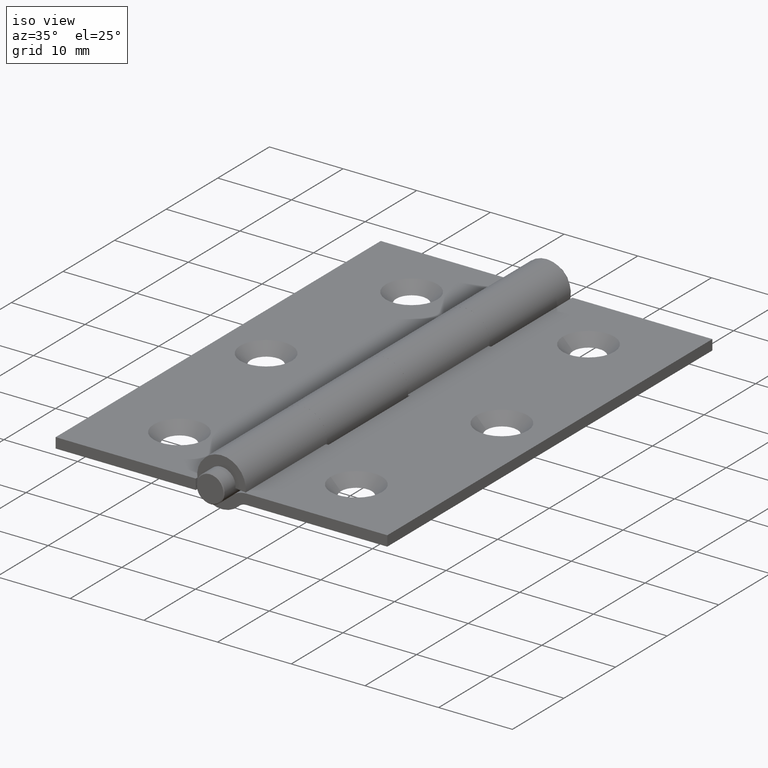
[diagram: clean part render]
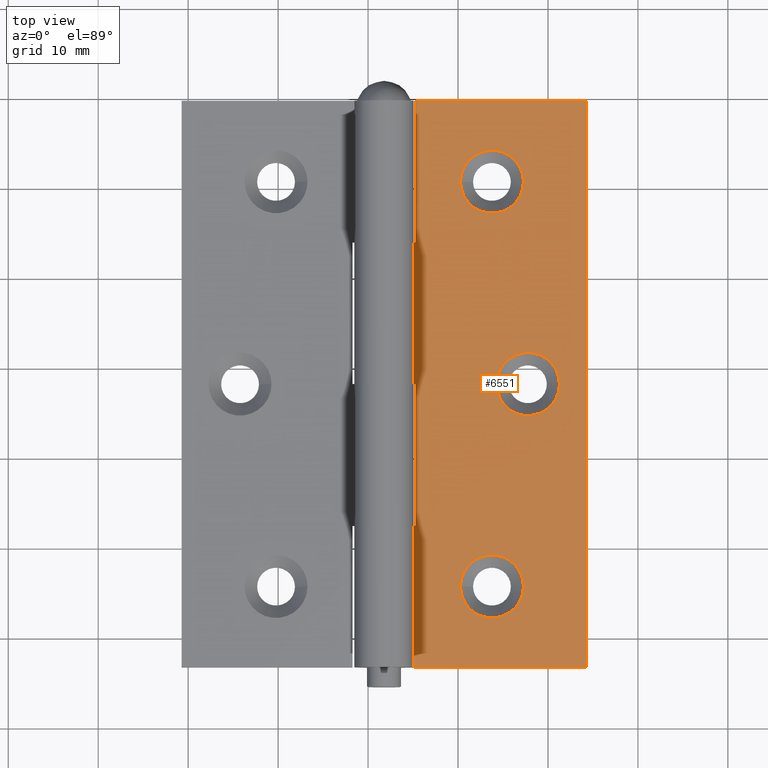
[diagram: tour spotlight — one face highlighted and labeled with its STEP entity id]
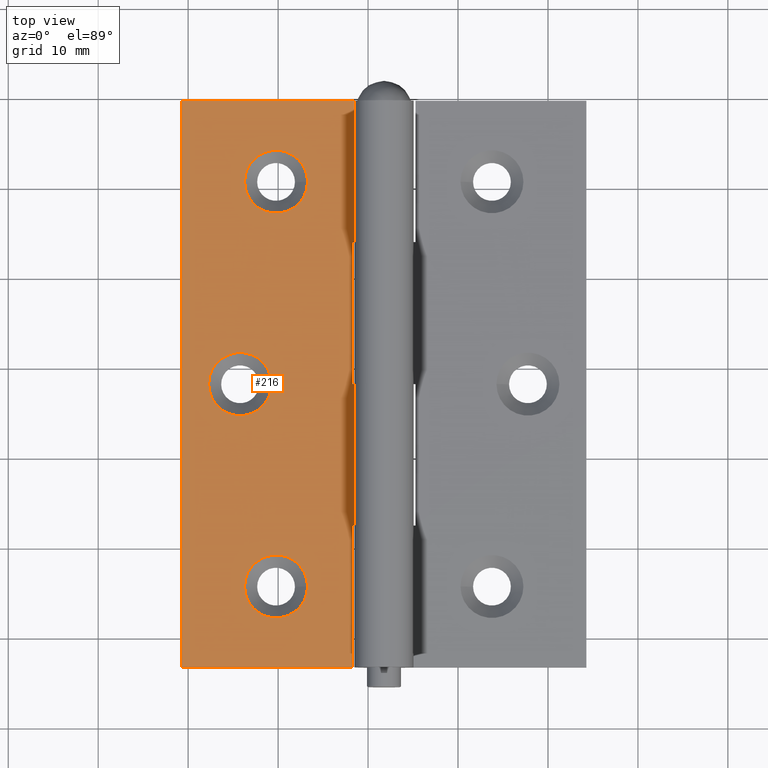
[diagram: tour spotlight — one face highlighted and labeled with its STEP entity id]
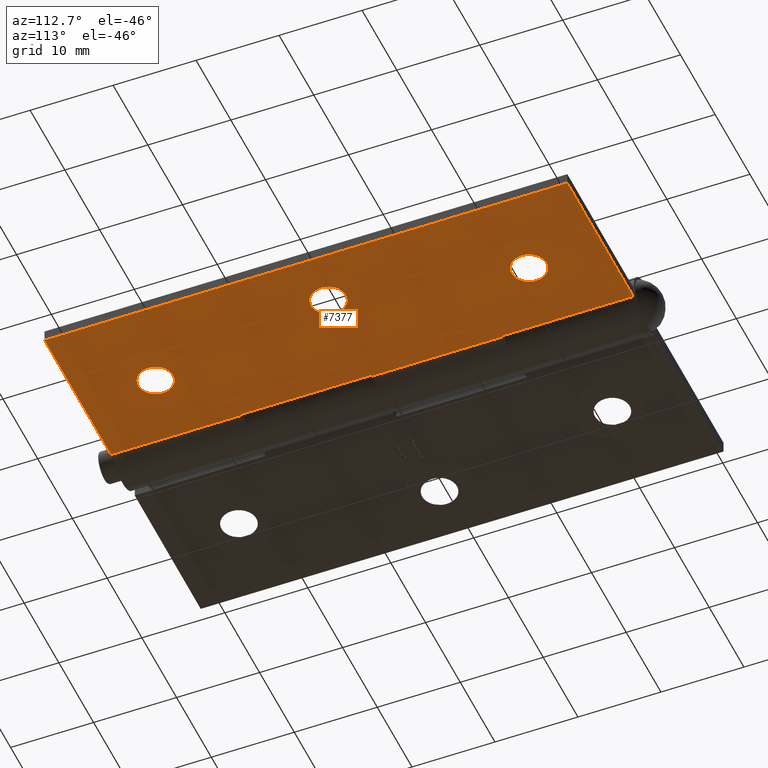
[diagram: tour spotlight — one face highlighted and labeled with its STEP entity id]
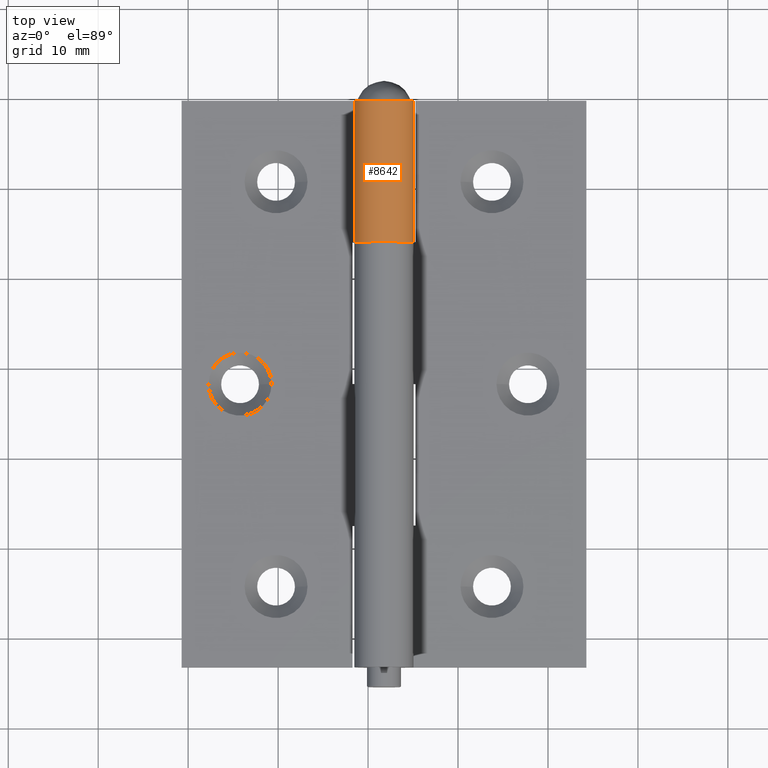
[diagram: tour spotlight — one face highlighted and labeled with its STEP entity id]
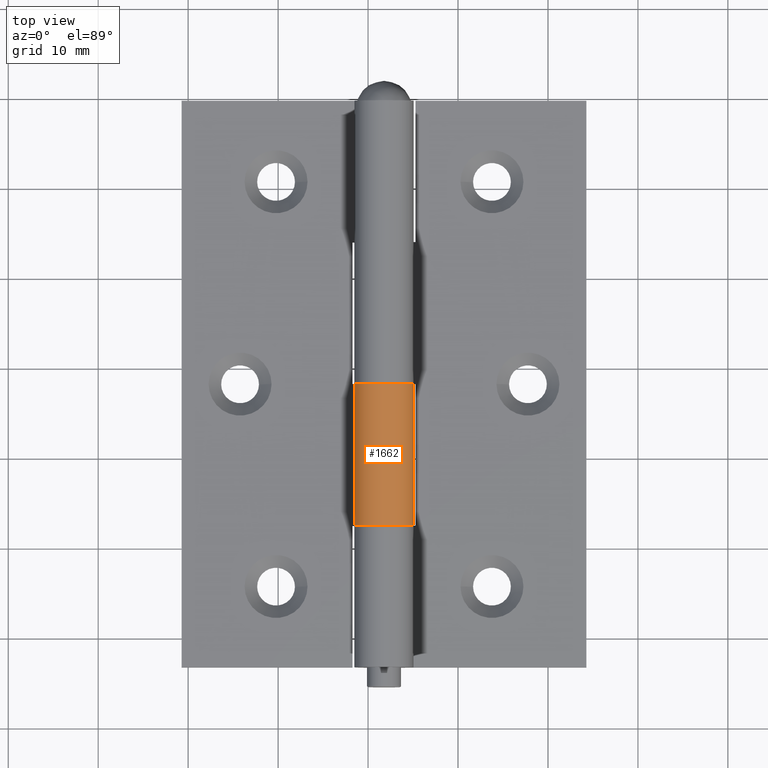
[diagram: tour spotlight — one face highlighted and labeled with its STEP entity id]
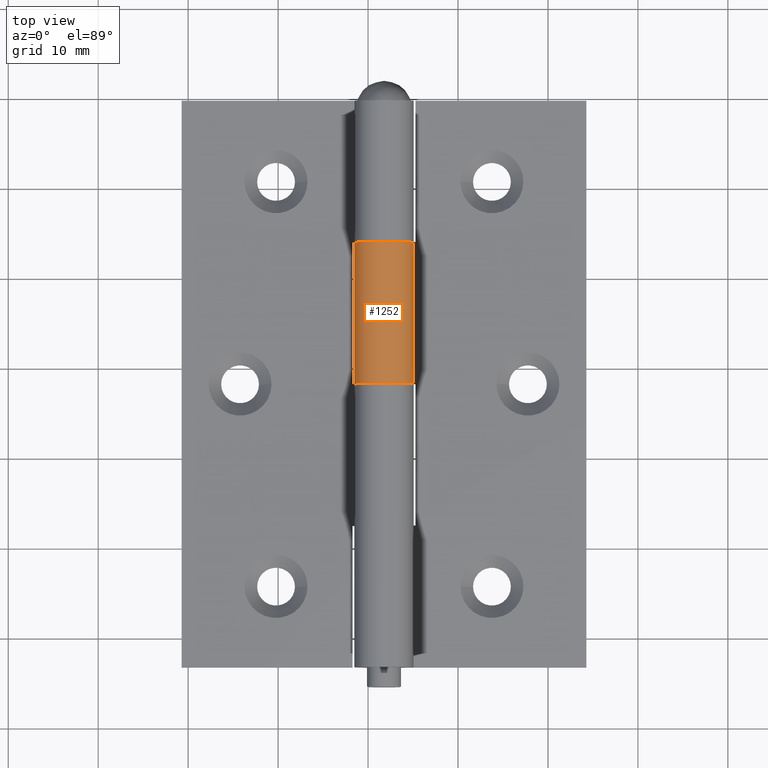
[diagram: tour spotlight — one face highlighted and labeled with its STEP entity id]
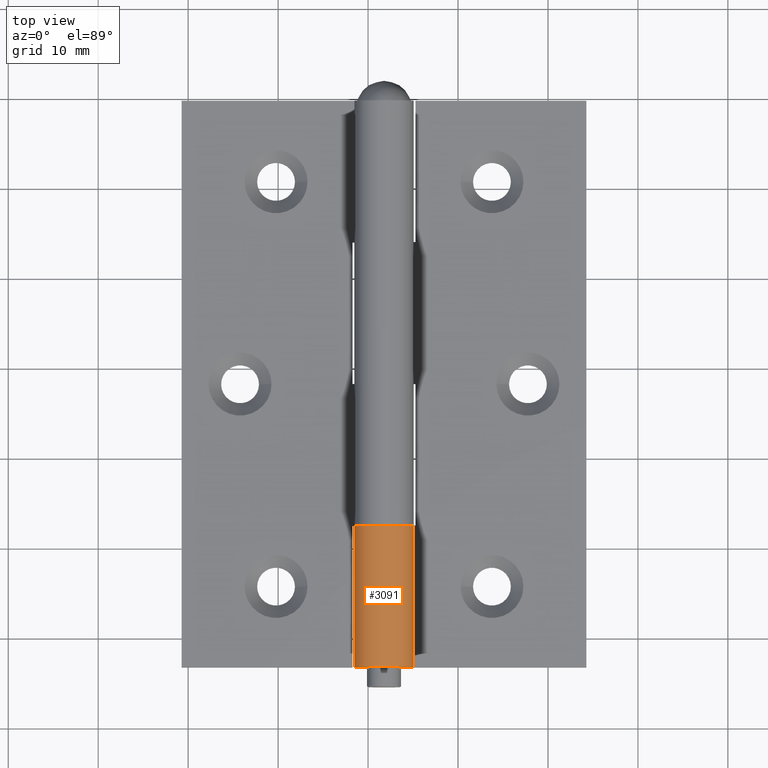
[diagram: tour spotlight — one face highlighted and labeled with its STEP entity id]
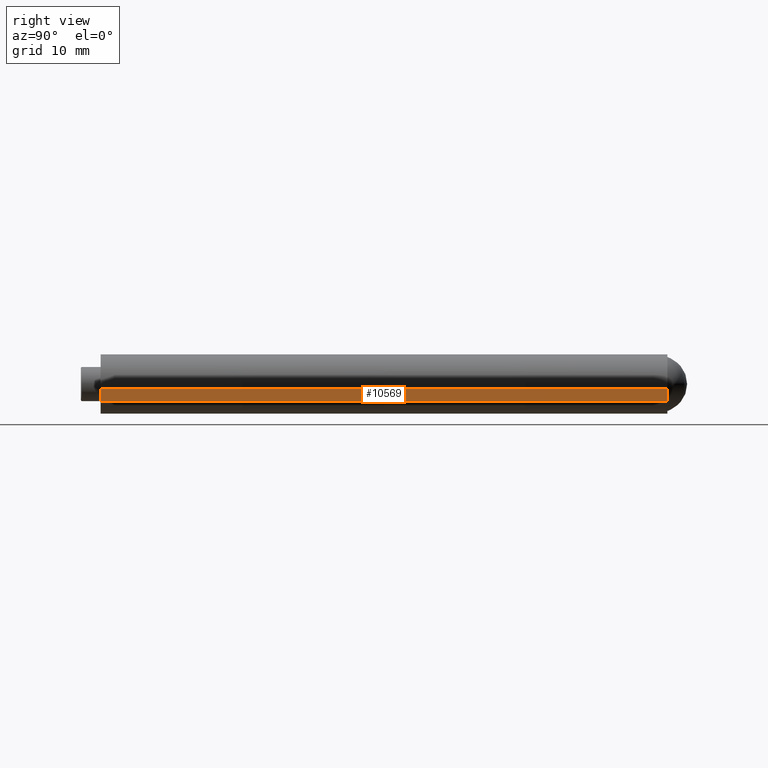
[diagram: tour spotlight — one face highlighted and labeled with its STEP entity id]
A machine part: a face-by-face anatomy tour. The part has 233 B-rep faces; the first image is the clean iso view, then the 8 largest visible faces are spotlighted one at a time (largest first), each with its STEP entity span.

Face 1 — top view, entity #6551. In plain terms, the highlighted planar face has unit normal (0, -0, -1).
Definition (entity closure, byte-faithful):
#32 = DIRECTION ( 'NONE',  ( -1.000000000000000000, 0.000000000000000000, 3.097720492815717798E-17 ) ) ;
#57 = VERTEX_POINT ( 'NONE', #4087 ) ;
#201 = DIRECTION ( 'NONE',  ( -2.264254790790743879E-17, 0.000000000000000000, -1.000000000000000000 ) ) ;
#361 = ORIENTED_EDGE ( 'NONE', *, *, #8845, .T. ) ;
#661 = CARTESIAN_POINT ( 'NONE',  ( -15.49999999999998757, -22.50000000000000000, -0.5000000000000001110 ) ) ;
#814 = LINE ( 'NONE', #3585, #6184 ) ;
#876 = EDGE_LOOP ( 'NONE', ( #5326, #2671, #5594, #2920, #3896, #8039, #361, #1284, #2973, #2102 ) ) ;
#932 = PLANE ( 'NONE',  #8088 ) ;
#968 = LINE ( 'NONE', #3602, #6094 ) ;
#980 = LINE ( 'NONE', #2395, #7752 ) ;
#992 = CARTESIAN_POINT ( 'NONE',  ( -3.346640106136299586, 31.50000000000000000, -0.5000000000000008882 ) ) ;
#1131 = VERTEX_POINT ( 'NONE', #10328 ) ;
#1171 = FACE_OUTER_BOUND ( 'NONE', #876, .T. ) ;
#1199 = VERTEX_POINT ( 'NONE', #8434 ) ;
#1249 = AXIS2_PLACEMENT_3D ( 'NONE', #8010, #201, #1994 ) ;
#1284 = ORIENTED_EDGE ( 'NONE', *, *, #9753, .T. ) ;
#1309 = EDGE_CURVE ( 'NONE', #2111, #57, #814, .T. ) ;
#1519 = AXIS2_PLACEMENT_3D ( 'NONE', #3634, #5445, #8141 ) ;
#1692 = VERTEX_POINT ( 'NONE', #661 ) ;
#1785 = DIRECTION ( 'NONE',  ( -2.264254790790743879E-17, 0.000000000000000000, -1.000000000000000000 ) ) ;
#1824 = CARTESIAN_POINT ( 'NONE',  ( -22.50000000000000000, 31.50000000000000000, -0.5000000000000000000 ) ) ;
#1956 = VECTOR ( 'NONE', #6156, 1000.000000000000000 ) ;
#1994 = DIRECTION ( 'NONE',  ( -1.000000000000000000, 0.000000000000000000, 3.097720492815736287E-17 ) ) ;
#2005 = VECTOR ( 'NONE', #9453, 1000.000000000000000 ) ;
#2102 = ORIENTED_EDGE ( 'NONE', *, *, #10170, .T. ) ;
#2111 = VERTEX_POINT ( 'NONE', #2555 ) ;
#2145 = EDGE_CURVE ( 'NONE', #2384, #1199, #5913, .T. ) ;
#2219 = DIRECTION ( 'NONE',  ( -0.000000000000000000, -1.000000000000000000, -0.000000000000000000 ) ) ;
#2384 = VERTEX_POINT ( 'NONE', #11050 ) ;
#2395 = CARTESIAN_POINT ( 'NONE',  ( -22.49999999999999645, 15.74999999999999645, -0.5000000000000000000 ) ) ;
#2555 = CARTESIAN_POINT ( 'NONE',  ( -3.499999999999995115, 1.470543311858058792E-21, -0.5000000000000004441 ) ) ;
#2671 = ORIENTED_EDGE ( 'NONE', *, *, #8717, .T. ) ;
#2690 = VERTEX_POINT ( 'NONE', #11014 ) ;
#2711 = ORIENTED_EDGE ( 'NONE', *, *, #8931, .T. ) ;
#2913 = CARTESIAN_POINT ( 'NONE',  ( -3.346640106136299586, 15.75000000000000000, -0.5000000000000008882 ) ) ;
#2920 = ORIENTED_EDGE ( 'NONE', *, *, #5169, .F. ) ;
#2973 = ORIENTED_EDGE ( 'NONE', *, *, #2145, .F. ) ;
#3365 = FACE_BOUND ( 'NONE', #5708, .T. ) ;
#3525 = EDGE_CURVE ( 'NONE', #11333, #11333, #7274, .T. ) ;
#3585 = CARTESIAN_POINT ( 'NONE',  ( -3.499999999999999556, 31.50000000000000000, -0.5000000000000004441 ) ) ;
#3602 = CARTESIAN_POINT ( 'NONE',  ( -3.346640106136299586, 31.50000000000000000, -0.5000000000000008882 ) ) ;
#3634 = CARTESIAN_POINT ( 'NONE',  ( -11.99999999999999822, -22.50000000000000000, -0.5000000000000002220 ) ) ;
#3654 = CARTESIAN_POINT ( 'NONE',  ( -22.50000000000000000, -31.50000000000000000, -0.5000000000000000000 ) ) ;
#3655 = LINE ( 'NONE', #4055, #2005 ) ;
#3870 = ORIENTED_EDGE ( 'NONE', *, *, #3525, .T. ) ;
#3896 = ORIENTED_EDGE ( 'NONE', *, *, #6259, .T. ) ;
#4022 = LINE ( 'NONE', #4356, #1956 ) ;
#4055 = CARTESIAN_POINT ( 'NONE',  ( -22.50000000000000000, 31.50000000000000000, -0.5000000000000000000 ) ) ;
#4079 = VERTEX_POINT ( 'NONE', #3654 ) ;
#4087 = CARTESIAN_POINT ( 'NONE',  ( -3.499999999999997335, 15.75000000000000000, -0.5000000000000004441 ) ) ;
#4221 = DIRECTION ( 'NONE',  ( 1.000000000000000000, 2.312964634635742957E-16, -2.264254790790743879E-17 ) ) ;
#4356 = CARTESIAN_POINT ( 'NONE',  ( -22.50000000000000000, -31.50000000000000000, -0.5000000000000000000 ) ) ;
#4391 = CARTESIAN_POINT ( 'NONE',  ( -12.00000000000000355, 22.50000000000000000, -0.5000000000000002220 ) ) ;
#4539 = LINE ( 'NONE', #9342, #6084 ) ;
#4540 = DIRECTION ( 'NONE',  ( -1.000000000000000000, 0.000000000000000000, 2.264254790790743879E-17 ) ) ;
#5001 = EDGE_CURVE ( 'NONE', #1692, #1692, #8202, .T. ) ;
#5143 = VERTEX_POINT ( 'NONE', #7542 ) ;
#5169 = EDGE_CURVE ( 'NONE', #2690, #8021, #3655, .T. ) ;
#5189 = CARTESIAN_POINT ( 'NONE',  ( -3.499999999999999556, 31.50000000000000000, -0.5000000000000004441 ) ) ;
#5258 = LINE ( 'NONE', #5189, #7349 ) ;
#5326 = ORIENTED_EDGE ( 'NONE', *, *, #1309, .T. ) ;
#5445 = DIRECTION ( 'NONE',  ( -2.264254790790743879E-17, 0.000000000000000000, -1.000000000000000000 ) ) ;
#5494 = CARTESIAN_POINT ( 'NONE',  ( -22.50000000000000000, 31.50000000000000000, -0.5000000000000000000 ) ) ;
#5579 = VECTOR ( 'NONE', #7198, 1000.000000000000000 ) ;
#5594 = ORIENTED_EDGE ( 'NONE', *, *, #9449, .F. ) ;
#5708 = EDGE_LOOP ( 'NONE', ( #3870 ) ) ;
#5715 = VERTEX_POINT ( 'NONE', #5717 ) ;
#5717 = CARTESIAN_POINT ( 'NONE',  ( -3.499999999999992895, -31.50000000000000000, -0.5000000000000004441 ) ) ;
#5913 = LINE ( 'NONE', #992, #6188 ) ;
#5988 = LINE ( 'NONE', #5494, #5579 ) ;
#6084 = VECTOR ( 'NONE', #9495, 1000.000000000000000 ) ;
#6094 = VECTOR ( 'NONE', #7197, 1000.000000000000000 ) ;
#6156 = DIRECTION ( 'NONE',  ( 1.000000000000000000, 0.000000000000000000, -2.264254790790743879E-17 ) ) ;
#6184 = VECTOR ( 'NONE', #10661, 1000.000000000000000 ) ;
#6188 = VECTOR ( 'NONE', #2219, 1000.000000000000000 ) ;
#6259 = EDGE_CURVE ( 'NONE', #2690, #4079, #5988, .T. ) ;
#6551 = ADVANCED_FACE ( 'NONE', ( #10941, #7782, #3365, #1171 ), #932, .F. ) ;
#7176 = EDGE_LOOP ( 'NONE', ( #10255 ) ) ;
#7195 = CIRCLE ( 'NONE', #1249, 3.499999999999989342 ) ;
#7197 = DIRECTION ( 'NONE',  ( -0.000000000000000000, -1.000000000000000000, -0.000000000000000000 ) ) ;
#7198 = DIRECTION ( 'NONE',  ( -0.000000000000000000, -1.000000000000000000, -0.000000000000000000 ) ) ;
#7274 = CIRCLE ( 'NONE', #10350, 3.500000000000010214 ) ;
#7349 = VECTOR ( 'NONE', #10530, 1000.000000000000000 ) ;
#7505 = DIRECTION ( 'NONE',  ( -1.000000000000000000, 9.654675099430974217E-18, 2.264254790790743879E-17 ) ) ;
#7522 = VERTEX_POINT ( 'NONE', #2913 ) ;
#7542 = CARTESIAN_POINT ( 'NONE',  ( -3.499999999999993783, -15.75000000000000000, -0.5000000000000004441 ) ) ;
#7752 = VECTOR ( 'NONE', #4221, 1000.000000000000000 ) ;
#7782 = FACE_BOUND ( 'NONE', #7176, .T. ) ;
#7926 = CARTESIAN_POINT ( 'NONE',  ( -3.346640106136299586, 31.50000000000000000, -0.5000000000000008882 ) ) ;
#7982 = EDGE_CURVE ( 'NONE', #4079, #5715, #4022, .T. ) ;
#8010 = CARTESIAN_POINT ( 'NONE',  ( -16.00000000000000355, -1.326893521891576934E-15, -0.5000000000000001110 ) ) ;
#8021 = VERTEX_POINT ( 'NONE', #7926 ) ;
#8039 = ORIENTED_EDGE ( 'NONE', *, *, #7982, .T. ) ;
#8088 = AXIS2_PLACEMENT_3D ( 'NONE', #1824, #1785, #4540 ) ;
#8141 = DIRECTION ( 'NONE',  ( -1.000000000000000000, 0.000000000000000000, 3.097720492815736287E-17 ) ) ;
#8202 = CIRCLE ( 'NONE', #1519, 3.499999999999989342 ) ;
#8434 = CARTESIAN_POINT ( 'NONE',  ( -3.346640106136299586, -15.75000000000000000, -0.5000000000000008882 ) ) ;
#8526 = EDGE_LOOP ( 'NONE', ( #2711 ) ) ;
#8717 = EDGE_CURVE ( 'NONE', #57, #7522, #980, .T. ) ;
#8845 = EDGE_CURVE ( 'NONE', #5715, #5143, #5258, .T. ) ;
#8931 = EDGE_CURVE ( 'NONE', #1131, #1131, #7195, .T. ) ;
#9179 = CARTESIAN_POINT ( 'NONE',  ( -22.50000000000000000, 0.000000000000000000, -0.5000000000000000000 ) ) ;
#9342 = CARTESIAN_POINT ( 'NONE',  ( -22.49999999999997868, -15.75000000000001421, -0.5000000000000000000 ) ) ;
#9449 = EDGE_CURVE ( 'NONE', #8021, #7522, #968, .T. ) ;
#9453 = DIRECTION ( 'NONE',  ( 1.000000000000000000, 0.000000000000000000, -2.264254790790743879E-17 ) ) ;
#9495 = DIRECTION ( 'NONE',  ( 1.000000000000000000, 4.625929269271485914E-16, -2.264254790790743879E-17 ) ) ;
#9753 = EDGE_CURVE ( 'NONE', #5143, #1199, #4539, .T. ) ;
#9919 = VECTOR ( 'NONE', #7505, 1000.000000000000000 ) ;
#10170 = EDGE_CURVE ( 'NONE', #2384, #2111, #10192, .T. ) ;
#10192 = LINE ( 'NONE', #9179, #9919 ) ;
#10255 = ORIENTED_EDGE ( 'NONE', *, *, #5001, .T. ) ;
#10328 = CARTESIAN_POINT ( 'NONE',  ( -19.49999999999999289, -1.326893521891576934E-15, -0.5000000000000000000 ) ) ;
#10350 = AXIS2_PLACEMENT_3D ( 'NONE', #4391, #10554, #32 ) ;
#10530 = DIRECTION ( 'NONE',  ( -1.376764663473656463E-16, 1.000000000000000000, 3.117345985061632960E-33 ) ) ;
#10554 = DIRECTION ( 'NONE',  ( -2.264254790790743879E-17, 0.000000000000000000, -1.000000000000000000 ) ) ;
#10661 = DIRECTION ( 'NONE',  ( -1.376764663473656463E-16, 1.000000000000000000, 3.117345985061632960E-33 ) ) ;
#10941 = FACE_BOUND ( 'NONE', #8526, .T. ) ;
#11014 = CARTESIAN_POINT ( 'NONE',  ( -22.50000000000000000, 31.50000000000000000, -0.5000000000000000000 ) ) ;
#11050 = CARTESIAN_POINT ( 'NONE',  ( -3.346640106136299586, -3.009265538105056020E-33, -0.5000000000000008882 ) ) ;
#11270 = CARTESIAN_POINT ( 'NONE',  ( -15.50000000000001421, 22.50000000000000000, -0.5000000000000001110 ) ) ;
#11333 = VERTEX_POINT ( 'NONE', #11270 ) ;

Face 2 — top view, entity #216. In plain terms, the highlighted planar face has unit normal (0, 0, -1).
Definition (entity closure, byte-faithful):
#51 = DIRECTION ( 'NONE',  ( 0.000000000000000000, 0.000000000000000000, -1.000000000000000000 ) ) ;
#108 = DIRECTION ( 'NONE',  ( -1.000000000000000000, 9.654675099430972676E-18, 0.000000000000000000 ) ) ;
#164 = CARTESIAN_POINT ( 'NONE',  ( -3.346640106136305803, 31.50000000000000000, -0.4999999999999995559 ) ) ;
#209 = AXIS2_PLACEMENT_3D ( 'NONE', #2001, #2879, #4639 ) ;
#216 = ADVANCED_FACE ( 'NONE', ( #5089, #9363, #5503, #2756 ), #10568, .F. ) ;
#379 = EDGE_CURVE ( 'NONE', #4728, #6232, #2471, .T. ) ;
#586 = VERTEX_POINT ( 'NONE', #6264 ) ;
#719 = LINE ( 'NONE', #1078, #1562 ) ;
#908 = LINE ( 'NONE', #2423, #8913 ) ;
#910 = CARTESIAN_POINT ( 'NONE',  ( -3.499999999999993783, -15.75000000000000000, -0.5000000000000000000 ) ) ;
#1078 = CARTESIAN_POINT ( 'NONE',  ( -3.346640106136305803, 31.50000000000000000, -0.4999999999999995559 ) ) ;
#1094 = VECTOR ( 'NONE', #2251, 1000.000000000000000 ) ;
#1148 = CARTESIAN_POINT ( 'NONE',  ( -3.499999999999997335, 15.75000000000000000, -0.5000000000000000000 ) ) ;
#1232 = DIRECTION ( 'NONE',  ( -1.376764663473656710E-16, 1.000000000000000000, 0.000000000000000000 ) ) ;
#1238 = DIRECTION ( 'NONE',  ( 1.000000000000000000, 4.625929269271485914E-16, 0.000000000000000000 ) ) ;
#1316 = DIRECTION ( 'NONE',  ( -1.000000000000000000, 0.000000000000000000, 0.000000000000000000 ) ) ;
#1368 = ORIENTED_EDGE ( 'NONE', *, *, #1497, .T. ) ;
#1425 = VERTEX_POINT ( 'NONE', #6828 ) ;
#1497 = EDGE_CURVE ( 'NONE', #8183, #9382, #2460, .T. ) ;
#1562 = VECTOR ( 'NONE', #7984, 1000.000000000000000 ) ;
#1771 = CARTESIAN_POINT ( 'NONE',  ( -22.50000000000000000, 31.50000000000000000, -0.5000000000000000000 ) ) ;
#1944 = EDGE_CURVE ( 'NONE', #9382, #2965, #11268, .T. ) ;
#1968 = VECTOR ( 'NONE', #10102, 1000.000000000000000 ) ;
#1986 = VERTEX_POINT ( 'NONE', #164 ) ;
#2001 = CARTESIAN_POINT ( 'NONE',  ( -16.00000000000000355, -1.326893521891576934E-15, -0.5000000000000000000 ) ) ;
#2119 = CARTESIAN_POINT ( 'NONE',  ( -3.499999999999999556, 31.50000000000000000, -0.5000000000000000000 ) ) ;
#2251 = DIRECTION ( 'NONE',  ( -0.000000000000000000, -1.000000000000000000, -0.000000000000000000 ) ) ;
#2269 = CIRCLE ( 'NONE', #209, 3.500000000000003109 ) ;
#2423 = CARTESIAN_POINT ( 'NONE',  ( -22.50000000000000000, 31.50000000000000000, -0.5000000000000000000 ) ) ;
#2430 = VERTEX_POINT ( 'NONE', #5665 ) ;
#2460 = LINE ( 'NONE', #2940, #10288 ) ;
#2471 = LINE ( 'NONE', #2119, #6889 ) ;
#2650 = CARTESIAN_POINT ( 'NONE',  ( -22.50000000000000000, 0.000000000000000000, -0.5000000000000000000 ) ) ;
#2710 = AXIS2_PLACEMENT_3D ( 'NONE', #8313, #3071, #1316 ) ;
#2719 = CARTESIAN_POINT ( 'NONE',  ( -3.499999999999992895, -31.50000000000000000, -0.5000000000000000000 ) ) ;
#2739 = AXIS2_PLACEMENT_3D ( 'NONE', #10510, #4352, #11295 ) ;
#2756 = FACE_OUTER_BOUND ( 'NONE', #9292, .T. ) ;
#2879 = DIRECTION ( 'NONE',  ( 0.000000000000000000, 0.000000000000000000, -1.000000000000000000 ) ) ;
#2940 = CARTESIAN_POINT ( 'NONE',  ( -3.499999999999999556, 31.50000000000000000, -0.5000000000000000000 ) ) ;
#2965 = VERTEX_POINT ( 'NONE', #9781 ) ;
#2971 = CARTESIAN_POINT ( 'NONE',  ( -22.50000000000000000, -31.50000000000000000, -0.5000000000000000000 ) ) ;
#3071 = DIRECTION ( 'NONE',  ( 0.000000000000000000, 0.000000000000000000, -1.000000000000000000 ) ) ;
#3139 = ORIENTED_EDGE ( 'NONE', *, *, #7768, .T. ) ;
#3240 = ORIENTED_EDGE ( 'NONE', *, *, #4739, .F. ) ;
#3257 = VECTOR ( 'NONE', #108, 1000.000000000000000 ) ;
#3328 = DIRECTION ( 'NONE',  ( -0.000000000000000000, -1.000000000000000000, -0.000000000000000000 ) ) ;
#3762 = ORIENTED_EDGE ( 'NONE', *, *, #7674, .T. ) ;
#3920 = ORIENTED_EDGE ( 'NONE', *, *, #8549, .F. ) ;
#4052 = EDGE_LOOP ( 'NONE', ( #3762 ) ) ;
#4285 = DIRECTION ( 'NONE',  ( 1.000000000000000000, 0.000000000000000000, 0.000000000000000000 ) ) ;
#4352 = DIRECTION ( 'NONE',  ( 0.000000000000000000, 0.000000000000000000, -1.000000000000000000 ) ) ;
#4610 = LINE ( 'NONE', #2650, #3257 ) ;
#4639 = DIRECTION ( 'NONE',  ( -1.000000000000000000, 0.000000000000000000, 0.000000000000000000 ) ) ;
#4715 = CARTESIAN_POINT ( 'NONE',  ( -22.50000000000000000, -31.50000000000000000, -0.5000000000000000000 ) ) ;
#4728 = VERTEX_POINT ( 'NONE', #6822 ) ;
#4739 = EDGE_CURVE ( 'NONE', #2430, #1986, #908, .T. ) ;
#4863 = EDGE_CURVE ( 'NONE', #8525, #4728, #4610, .T. ) ;
#4993 = LINE ( 'NONE', #11206, #6950 ) ;
#5089 = FACE_BOUND ( 'NONE', #8733, .T. ) ;
#5137 = LINE ( 'NONE', #4715, #1968 ) ;
#5215 = EDGE_CURVE ( 'NONE', #8525, #2965, #11100, .T. ) ;
#5257 = VERTEX_POINT ( 'NONE', #7677 ) ;
#5328 = EDGE_CURVE ( 'NONE', #1425, #1425, #8770, .T. ) ;
#5452 = ORIENTED_EDGE ( 'NONE', *, *, #5328, .T. ) ;
#5503 = FACE_BOUND ( 'NONE', #7859, .T. ) ;
#5646 = LINE ( 'NONE', #7535, #1094 ) ;
#5665 = CARTESIAN_POINT ( 'NONE',  ( -22.50000000000000000, 31.50000000000000000, -0.5000000000000000000 ) ) ;
#6014 = ORIENTED_EDGE ( 'NONE', *, *, #1944, .T. ) ;
#6232 = VERTEX_POINT ( 'NONE', #1148 ) ;
#6264 = CARTESIAN_POINT ( 'NONE',  ( -3.346640106136305803, 15.75000000000000000, -0.4999999999999995559 ) ) ;
#6484 = ORIENTED_EDGE ( 'NONE', *, *, #4863, .T. ) ;
#6756 = ORIENTED_EDGE ( 'NONE', *, *, #7135, .T. ) ;
#6822 = CARTESIAN_POINT ( 'NONE',  ( -3.499999999999995115, 1.470543311858058792E-21, -0.5000000000000000000 ) ) ;
#6828 = CARTESIAN_POINT ( 'NONE',  ( -15.50000000000000711, 22.50000000000000000, -0.5000000000000000000 ) ) ;
#6889 = VECTOR ( 'NONE', #1232, 1000.000000000000000 ) ;
#6950 = VECTOR ( 'NONE', #11273, 1000.000000000000000 ) ;
#7135 = EDGE_CURVE ( 'NONE', #9271, #9271, #2269, .T. ) ;
#7252 = VERTEX_POINT ( 'NONE', #2971 ) ;
#7402 = EDGE_CURVE ( 'NONE', #6232, #586, #4993, .T. ) ;
#7535 = CARTESIAN_POINT ( 'NONE',  ( -22.50000000000000000, 31.50000000000000000, -0.5000000000000000000 ) ) ;
#7674 = EDGE_CURVE ( 'NONE', #5257, #5257, #10095, .T. ) ;
#7677 = CARTESIAN_POINT ( 'NONE',  ( -15.50000000000000178, -22.50000000000000000, -0.5000000000000000000 ) ) ;
#7768 = EDGE_CURVE ( 'NONE', #7252, #8183, #5137, .T. ) ;
#7859 = EDGE_LOOP ( 'NONE', ( #5452 ) ) ;
#7984 = DIRECTION ( 'NONE',  ( -0.000000000000000000, -1.000000000000000000, -0.000000000000000000 ) ) ;
#8057 = CARTESIAN_POINT ( 'NONE',  ( -3.346640106136305803, -3.009265538105056020E-33, -0.4999999999999995559 ) ) ;
#8183 = VERTEX_POINT ( 'NONE', #2719 ) ;
#8313 = CARTESIAN_POINT ( 'NONE',  ( -11.99999999999999822, -22.50000000000000000, -0.5000000000000000000 ) ) ;
#8500 = VECTOR ( 'NONE', #3328, 1000.000000000000000 ) ;
#8525 = VERTEX_POINT ( 'NONE', #8057 ) ;
#8549 = EDGE_CURVE ( 'NONE', #1986, #586, #719, .T. ) ;
#8617 = CARTESIAN_POINT ( 'NONE',  ( -3.346640106136305803, 31.50000000000000000, -0.4999999999999995559 ) ) ;
#8733 = EDGE_LOOP ( 'NONE', ( #6756 ) ) ;
#8770 = CIRCLE ( 'NONE', #2739, 3.500000000000003109 ) ;
#8913 = VECTOR ( 'NONE', #4285, 1000.000000000000000 ) ;
#9109 = DIRECTION ( 'NONE',  ( -1.376764663473656710E-16, 1.000000000000000000, 0.000000000000000000 ) ) ;
#9271 = VERTEX_POINT ( 'NONE', #11204 ) ;
#9292 = EDGE_LOOP ( 'NONE', ( #11022, #9680, #3920, #3240, #10695, #3139, #1368, #6014, #10297, #6484 ) ) ;
#9363 = FACE_BOUND ( 'NONE', #4052, .T. ) ;
#9382 = VERTEX_POINT ( 'NONE', #910 ) ;
#9680 = ORIENTED_EDGE ( 'NONE', *, *, #7402, .T. ) ;
#9781 = CARTESIAN_POINT ( 'NONE',  ( -3.346640106136305803, -15.75000000000000000, -0.4999999999999995559 ) ) ;
#10001 = CARTESIAN_POINT ( 'NONE',  ( -22.49999999999997868, -15.75000000000001421, -0.5000000000000000000 ) ) ;
#10095 = CIRCLE ( 'NONE', #2710, 3.500000000000003109 ) ;
#10102 = DIRECTION ( 'NONE',  ( 1.000000000000000000, 0.000000000000000000, 0.000000000000000000 ) ) ;
#10288 = VECTOR ( 'NONE', #9109, 1000.000000000000000 ) ;
#10297 = ORIENTED_EDGE ( 'NONE', *, *, #5215, .F. ) ;
#10378 = EDGE_CURVE ( 'NONE', #2430, #7252, #5646, .T. ) ;
#10396 = AXIS2_PLACEMENT_3D ( 'NONE', #1771, #51, #10499 ) ;
#10499 = DIRECTION ( 'NONE',  ( -1.000000000000000000, 0.000000000000000000, -0.000000000000000000 ) ) ;
#10510 = CARTESIAN_POINT ( 'NONE',  ( -12.00000000000000355, 22.50000000000000000, -0.5000000000000000000 ) ) ;
#10568 = PLANE ( 'NONE',  #10396 ) ;
#10695 = ORIENTED_EDGE ( 'NONE', *, *, #10378, .T. ) ;
#11022 = ORIENTED_EDGE ( 'NONE', *, *, #379, .T. ) ;
#11100 = LINE ( 'NONE', #8617, #8500 ) ;
#11204 = CARTESIAN_POINT ( 'NONE',  ( -19.50000000000000711, -1.326893521891576934E-15, -0.5000000000000000000 ) ) ;
#11206 = CARTESIAN_POINT ( 'NONE',  ( -22.49999999999999645, 15.74999999999999645, -0.5000000000000000000 ) ) ;
#11268 = LINE ( 'NONE', #10001, #11407 ) ;
#11273 = DIRECTION ( 'NONE',  ( 1.000000000000000000, 2.312964634635742957E-16, 0.000000000000000000 ) ) ;
#11295 = DIRECTION ( 'NONE',  ( -1.000000000000000000, 0.000000000000000000, 0.000000000000000000 ) ) ;
#11407 = VECTOR ( 'NONE', #1238, 1000.000000000000000 ) ;

Face 3 — auxiliary view, entity #7377. In plain terms, the highlighted planar face has unit normal (0, 0, 1).
Definition (entity closure, byte-faithful):
#214 = VERTEX_POINT ( 'NONE', #3464 ) ;
#238 = VECTOR ( 'NONE', #7078, 1000.000000000000000 ) ;
#295 = EDGE_CURVE ( 'NONE', #3812, #4589, #6624, .T. ) ;
#382 = CARTESIAN_POINT ( 'NONE',  ( -12.00000000000000355, 22.50000000000000000, -1.899999999999999689 ) ) ;
#383 = CARTESIAN_POINT ( 'NONE',  ( -3.499999999999995115, 0.000000000000000000, -1.899999999999999689 ) ) ;
#417 = DIRECTION ( 'NONE',  ( 0.000000000000000000, 0.000000000000000000, 1.000000000000000000 ) ) ;
#498 = ORIENTED_EDGE ( 'NONE', *, *, #9597, .T. ) ;
#587 = CARTESIAN_POINT ( 'NONE',  ( -9.899999999999996803, -22.50000000000000000, -1.899999999999999689 ) ) ;
#737 = DIRECTION ( 'NONE',  ( 1.000000000000000000, 0.000000000000000000, -0.000000000000000000 ) ) ;
#928 = AXIS2_PLACEMENT_3D ( 'NONE', #8675, #5107, #737 ) ;
#969 = CARTESIAN_POINT ( 'NONE',  ( -3.346640106136300030, 31.50000000000000000, -1.899999999999999689 ) ) ;
#1026 = VECTOR ( 'NONE', #2009, 1000.000000000000000 ) ;
#1237 = EDGE_CURVE ( 'NONE', #6549, #9191, #9078, .T. ) ;
#1754 = DIRECTION ( 'NONE',  ( -0.000000000000000000, -1.000000000000000000, -0.000000000000000000 ) ) ;
#1757 = ORIENTED_EDGE ( 'NONE', *, *, #3665, .T. ) ;
#1762 = LINE ( 'NONE', #7846, #8391 ) ;
#1820 = ORIENTED_EDGE ( 'NONE', *, *, #2871, .T. ) ;
#1861 = CARTESIAN_POINT ( 'NONE',  ( -3.499999999999999556, 31.50000000000000000, -1.899999999999999689 ) ) ;
#1883 = DIRECTION ( 'NONE',  ( -0.000000000000000000, -1.000000000000000000, -0.000000000000000000 ) ) ;
#1995 = CARTESIAN_POINT ( 'NONE',  ( -11.99999999999999822, -22.50000000000000000, -1.899999999999999689 ) ) ;
#2009 = DIRECTION ( 'NONE',  ( -1.000000000000000000, -0.000000000000000000, -0.000000000000000000 ) ) ;
#2199 = CARTESIAN_POINT ( 'NONE',  ( -22.50000000000000000, -31.50000000000000000, -1.899999999999999689 ) ) ;
#2318 = VERTEX_POINT ( 'NONE', #9440 ) ;
#2375 = VERTEX_POINT ( 'NONE', #2199 ) ;
#2487 = EDGE_LOOP ( 'NONE', ( #8386, #1820, #6306, #4757, #3253, #11157, #9802, #3722, #9946, #6834 ) ) ;
#2587 = PLANE ( 'NONE',  #928 ) ;
#2694 = LINE ( 'NONE', #9029, #1026 ) ;
#2714 = VECTOR ( 'NONE', #4970, 1000.000000000000000 ) ;
#2846 = CARTESIAN_POINT ( 'NONE',  ( -3.499999999999997335, 15.75000000000000000, -1.899999999999999689 ) ) ;
#2871 = EDGE_CURVE ( 'NONE', #2318, #3985, #1762, .T. ) ;
#3196 = CARTESIAN_POINT ( 'NONE',  ( -13.90000000000000213, -1.326893521891576934E-15, -1.899999999999999689 ) ) ;
#3253 = ORIENTED_EDGE ( 'NONE', *, *, #295, .T. ) ;
#3464 = CARTESIAN_POINT ( 'NONE',  ( -3.499999999999991562, -31.50000000000000000, -1.899999999999999689 ) ) ;
#3662 = VECTOR ( 'NONE', #6092, 1000.000000000000000 ) ;
#3665 = EDGE_CURVE ( 'NONE', #4692, #4692, #4223, .T. ) ;
#3722 = ORIENTED_EDGE ( 'NONE', *, *, #5615, .T. ) ;
#3779 = DIRECTION ( 'NONE',  ( -1.000000000000000000, -4.625929269271485914E-16, 0.000000000000000000 ) ) ;
#3800 = CARTESIAN_POINT ( 'NONE',  ( -3.346640106136300030, 31.50000000000000000, -1.899999999999999689 ) ) ;
#3812 = VERTEX_POINT ( 'NONE', #8616 ) ;
#3985 = VERTEX_POINT ( 'NONE', #2846 ) ;
#4032 = AXIS2_PLACEMENT_3D ( 'NONE', #6371, #7267, #5680 ) ;
#4061 = CARTESIAN_POINT ( 'NONE',  ( -22.50000000000000000, 31.50000000000000000, -1.899999999999999689 ) ) ;
#4223 = CIRCLE ( 'NONE', #4032, 2.100000000000000977 ) ;
#4297 = EDGE_CURVE ( 'NONE', #3985, #11107, #7694, .T. ) ;
#4347 = LINE ( 'NONE', #6190, #238 ) ;
#4362 = EDGE_CURVE ( 'NONE', #9398, #9398, #5747, .T. ) ;
#4589 = VERTEX_POINT ( 'NONE', #4669 ) ;
#4669 = CARTESIAN_POINT ( 'NONE',  ( -3.346640106136302695, -15.75000000000000355, -1.899999999999999689 ) ) ;
#4692 = VERTEX_POINT ( 'NONE', #3196 ) ;
#4700 = EDGE_LOOP ( 'NONE', ( #7769 ) ) ;
#4757 = ORIENTED_EDGE ( 'NONE', *, *, #10261, .T. ) ;
#4896 = EDGE_CURVE ( 'NONE', #6549, #2318, #4347, .T. ) ;
#4961 = VECTOR ( 'NONE', #8919, 1000.000000000000000 ) ;
#4970 = DIRECTION ( 'NONE',  ( 1.000000000000000000, -9.654675099430974217E-18, 0.000000000000000000 ) ) ;
#5107 = DIRECTION ( 'NONE',  ( 0.000000000000000000, 0.000000000000000000, 1.000000000000000000 ) ) ;
#5280 = FACE_OUTER_BOUND ( 'NONE', #2487, .T. ) ;
#5481 = CARTESIAN_POINT ( 'NONE',  ( -22.49999999999997868, -15.75000000000001421, -1.899999999999999689 ) ) ;
#5615 = EDGE_CURVE ( 'NONE', #214, #2375, #2694, .T. ) ;
#5680 = DIRECTION ( 'NONE',  ( 1.000000000000000000, 0.000000000000000000, 0.000000000000000000 ) ) ;
#5692 = VECTOR ( 'NONE', #1754, 1000.000000000000000 ) ;
#5747 = CIRCLE ( 'NONE', #7025, 2.100000000000000977 ) ;
#5789 = VECTOR ( 'NONE', #1883, 1000.000000000000000 ) ;
#6092 = DIRECTION ( 'NONE',  ( 1.376764663473656463E-16, -1.000000000000000000, 0.000000000000000000 ) ) ;
#6122 = EDGE_LOOP ( 'NONE', ( #1757 ) ) ;
#6190 = CARTESIAN_POINT ( 'NONE',  ( -3.346640106136300030, 31.50000000000000000, -1.899999999999999689 ) ) ;
#6306 = ORIENTED_EDGE ( 'NONE', *, *, #4297, .T. ) ;
#6371 = CARTESIAN_POINT ( 'NONE',  ( -16.00000000000000355, -1.326893521891576934E-15, -1.899999999999999689 ) ) ;
#6441 = LINE ( 'NONE', #11136, #2714 ) ;
#6549 = VERTEX_POINT ( 'NONE', #969 ) ;
#6624 = LINE ( 'NONE', #3800, #5789 ) ;
#6754 = CARTESIAN_POINT ( 'NONE',  ( -9.900000000000002132, 22.50000000000000000, -1.899999999999999689 ) ) ;
#6820 = FACE_BOUND ( 'NONE', #4700, .T. ) ;
#6834 = ORIENTED_EDGE ( 'NONE', *, *, #1237, .F. ) ;
#7025 = AXIS2_PLACEMENT_3D ( 'NONE', #1995, #8973, #8902 ) ;
#7078 = DIRECTION ( 'NONE',  ( -0.000000000000000000, -1.000000000000000000, -0.000000000000000000 ) ) ;
#7149 = AXIS2_PLACEMENT_3D ( 'NONE', #382, #417, #9080 ) ;
#7235 = CARTESIAN_POINT ( 'NONE',  ( -3.499999999999993783, -15.75000000000000000, -1.899999999999999689 ) ) ;
#7267 = DIRECTION ( 'NONE',  ( 0.000000000000000000, 0.000000000000000000, 1.000000000000000000 ) ) ;
#7359 = FACE_BOUND ( 'NONE', #8548, .T. ) ;
#7377 = ADVANCED_FACE ( 'NONE', ( #5280, #9156, #6820, #7359 ), #2587, .F. ) ;
#7669 = CARTESIAN_POINT ( 'NONE',  ( -22.50000000000000000, 31.50000000000000000, -1.899999999999999689 ) ) ;
#7694 = LINE ( 'NONE', #7942, #3662 ) ;
#7769 = ORIENTED_EDGE ( 'NONE', *, *, #4362, .T. ) ;
#7846 = CARTESIAN_POINT ( 'NONE',  ( -22.49999999999999645, 15.74999999999999645, -1.899999999999999689 ) ) ;
#7895 = VERTEX_POINT ( 'NONE', #6754 ) ;
#7942 = CARTESIAN_POINT ( 'NONE',  ( -3.499999999999999556, 31.50000000000000000, -1.899999999999999689 ) ) ;
#7967 = EDGE_CURVE ( 'NONE', #9191, #2375, #11334, .T. ) ;
#8386 = ORIENTED_EDGE ( 'NONE', *, *, #4896, .T. ) ;
#8391 = VECTOR ( 'NONE', #8688, 1000.000000000000000 ) ;
#8548 = EDGE_LOOP ( 'NONE', ( #498 ) ) ;
#8616 = CARTESIAN_POINT ( 'NONE',  ( -3.346640106136302695, -1.849194668377257331E-16, -1.899999999999999689 ) ) ;
#8675 = CARTESIAN_POINT ( 'NONE',  ( -22.50000000000000000, 31.50000000000000000, -1.899999999999999689 ) ) ;
#8688 = DIRECTION ( 'NONE',  ( -1.000000000000000000, -2.312964634635742957E-16, 0.000000000000000000 ) ) ;
#8730 = LINE ( 'NONE', #5481, #9547 ) ;
#8743 = CARTESIAN_POINT ( 'NONE',  ( -22.50000000000000000, 31.50000000000000000, -1.899999999999999689 ) ) ;
#8902 = DIRECTION ( 'NONE',  ( 1.000000000000000000, 0.000000000000000000, 0.000000000000000000 ) ) ;
#8919 = DIRECTION ( 'NONE',  ( 1.376764663473656463E-16, -1.000000000000000000, 0.000000000000000000 ) ) ;
#8973 = DIRECTION ( 'NONE',  ( 0.000000000000000000, 0.000000000000000000, 1.000000000000000000 ) ) ;
#9029 = CARTESIAN_POINT ( 'NONE',  ( -22.50000000000000000, -31.50000000000000000, -1.899999999999999689 ) ) ;
#9078 = LINE ( 'NONE', #4061, #9490 ) ;
#9080 = DIRECTION ( 'NONE',  ( 1.000000000000000000, 0.000000000000000000, 0.000000000000000000 ) ) ;
#9156 = FACE_BOUND ( 'NONE', #6122, .T. ) ;
#9191 = VERTEX_POINT ( 'NONE', #7669 ) ;
#9398 = VERTEX_POINT ( 'NONE', #587 ) ;
#9440 = CARTESIAN_POINT ( 'NONE',  ( -3.346640106136302695, 15.75000000000000000, -1.899999999999999689 ) ) ;
#9490 = VECTOR ( 'NONE', #10205, 1000.000000000000000 ) ;
#9508 = VERTEX_POINT ( 'NONE', #7235 ) ;
#9547 = VECTOR ( 'NONE', #3779, 1000.000000000000000 ) ;
#9597 = EDGE_CURVE ( 'NONE', #7895, #7895, #11178, .T. ) ;
#9802 = ORIENTED_EDGE ( 'NONE', *, *, #10048, .T. ) ;
#9946 = ORIENTED_EDGE ( 'NONE', *, *, #7967, .F. ) ;
#10048 = EDGE_CURVE ( 'NONE', #9508, #214, #11028, .T. ) ;
#10205 = DIRECTION ( 'NONE',  ( -1.000000000000000000, -0.000000000000000000, -0.000000000000000000 ) ) ;
#10261 = EDGE_CURVE ( 'NONE', #11107, #3812, #6441, .T. ) ;
#11028 = LINE ( 'NONE', #1861, #4961 ) ;
#11107 = VERTEX_POINT ( 'NONE', #383 ) ;
#11136 = CARTESIAN_POINT ( 'NONE',  ( -22.50000000000000000, 0.000000000000000000, -1.899999999999999689 ) ) ;
#11157 = ORIENTED_EDGE ( 'NONE', *, *, #11365, .T. ) ;
#11178 = CIRCLE ( 'NONE', #7149, 2.100000000000000977 ) ;
#11334 = LINE ( 'NONE', #8743, #5692 ) ;
#11365 = EDGE_CURVE ( 'NONE', #4589, #9508, #8730, .T. ) ;

Face 4 — top view, entity #8642. In plain terms, the highlighted cylindrical surface (edge-blend (fillet) strip) has radius 3.3 mm, axis along (-0, -1, -0).
Definition (entity closure, byte-faithful):
#163 = VECTOR ( 'NONE', #5118, 1000.000000000000000 ) ;
#325 = AXIS2_PLACEMENT_3D ( 'NONE', #640, #4017, #5837 ) ;
#564 = ORIENTED_EDGE ( 'NONE', *, *, #10811, .T. ) ;
#640 = CARTESIAN_POINT ( 'NONE',  ( 0.000000000000000000, 31.50000000000000000, 0.000000000000000000 ) ) ;
#714 = LINE ( 'NONE', #5831, #163 ) ;
#942 = VERTEX_POINT ( 'NONE', #4193 ) ;
#1017 = EDGE_CURVE ( 'NONE', #942, #4029, #1647, .T. ) ;
#1647 = LINE ( 'NONE', #5924, #10862 ) ;
#1817 = CYLINDRICAL_SURFACE ( 'NONE', #7533, 3.300000000000001599 ) ;
#1838 = ORIENTED_EDGE ( 'NONE', *, *, #1017, .T. ) ;
#2539 = ORIENTED_EDGE ( 'NONE', *, *, #5133, .F. ) ;
#2666 = CIRCLE ( 'NONE', #6872, 3.300000000000001599 ) ;
#3889 = DIRECTION ( 'NONE',  ( 0.000000000000000000, 0.000000000000000000, -1.000000000000000000 ) ) ;
#4017 = DIRECTION ( 'NONE',  ( 0.000000000000000000, 1.000000000000000000, 0.000000000000000000 ) ) ;
#4029 = VERTEX_POINT ( 'NONE', #8124 ) ;
#4193 = CARTESIAN_POINT ( 'NONE',  ( -3.275667870831842077, 31.50000000000000000, -0.4000000000000002998 ) ) ;
#4251 = EDGE_LOOP ( 'NONE', ( #564, #11222, #2539, #1838 ) ) ;
#4393 = VERTEX_POINT ( 'NONE', #9020 ) ;
#5101 = DIRECTION ( 'NONE',  ( -0.000000000000000000, -1.000000000000000000, -0.000000000000000000 ) ) ;
#5118 = DIRECTION ( 'NONE',  ( -0.000000000000000000, -1.000000000000000000, -0.000000000000000000 ) ) ;
#5133 = EDGE_CURVE ( 'NONE', #942, #10000, #7671, .T. ) ;
#5149 = DIRECTION ( 'NONE',  ( -2.312964634635742957E-16, 1.000000000000000000, 0.000000000000000000 ) ) ;
#5477 = CARTESIAN_POINT ( 'NONE',  ( -2.349768585159534684, 31.50000000000000000, -2.317021276595745416 ) ) ;
#5831 = CARTESIAN_POINT ( 'NONE',  ( -2.349768585159534684, 31.50000000000000000, -2.317021276595745416 ) ) ;
#5837 = DIRECTION ( 'NONE',  ( 0.000000000000000000, 0.000000000000000000, 1.000000000000000000 ) ) ;
#5924 = CARTESIAN_POINT ( 'NONE',  ( -3.275667870831842077, 31.50000000000000000, -0.4000000000000002998 ) ) ;
#6521 = CARTESIAN_POINT ( 'NONE',  ( 0.000000000000000000, 31.50000000000000000, 0.000000000000000000 ) ) ;
#6796 = FACE_OUTER_BOUND ( 'NONE', #4251, .T. ) ;
#6872 = AXIS2_PLACEMENT_3D ( 'NONE', #11236, #5149, #8713 ) ;
#7533 = AXIS2_PLACEMENT_3D ( 'NONE', #6521, #8281, #3889 ) ;
#7671 = CIRCLE ( 'NONE', #325, 3.300000000000001599 ) ;
#8124 = CARTESIAN_POINT ( 'NONE',  ( -3.275667870831842077, 15.75000000000000000, -0.4000000000000002998 ) ) ;
#8281 = DIRECTION ( 'NONE',  ( -0.000000000000000000, -1.000000000000000000, -0.000000000000000000 ) ) ;
#8642 = ADVANCED_FACE ( 'NONE', ( #6796 ), #1817, .T. ) ;
#8713 = DIRECTION ( 'NONE',  ( -1.000000000000000000, 0.000000000000000000, 0.000000000000000000 ) ) ;
#9020 = CARTESIAN_POINT ( 'NONE',  ( -2.349768585159535128, 15.75000000000000000, -2.317021276595745860 ) ) ;
#10000 = VERTEX_POINT ( 'NONE', #5477 ) ;
#10435 = EDGE_CURVE ( 'NONE', #10000, #4393, #714, .T. ) ;
#10811 = EDGE_CURVE ( 'NONE', #4029, #4393, #2666, .T. ) ;
#10862 = VECTOR ( 'NONE', #5101, 1000.000000000000000 ) ;
#11222 = ORIENTED_EDGE ( 'NONE', *, *, #10435, .F. ) ;
#11236 = CARTESIAN_POINT ( 'NONE',  ( 0.000000000000000000, 15.75000000000000000, 0.000000000000000000 ) ) ;

Face 5 — top view, entity #1662. In plain terms, the highlighted cylindrical surface (edge-blend (fillet) strip) has radius 3.3 mm, axis along (-0, -1, -0).
Definition (entity closure, byte-faithful):
#66 = CARTESIAN_POINT ( 'NONE',  ( -3.275667870831842077, 31.50000000000000000, -0.4000000000000002998 ) ) ;
#866 = DIRECTION ( 'NONE',  ( -1.000000000000000000, 0.000000000000000000, 0.000000000000000000 ) ) ;
#922 = DIRECTION ( 'NONE',  ( -0.000000000000000000, -1.000000000000000000, -0.000000000000000000 ) ) ;
#1180 = CARTESIAN_POINT ( 'NONE',  ( 0.000000000000000000, 0.000000000000000000, 0.000000000000000000 ) ) ;
#1318 = VECTOR ( 'NONE', #10550, 1000.000000000000000 ) ;
#1620 = VERTEX_POINT ( 'NONE', #5833 ) ;
#1662 = ADVANCED_FACE ( 'NONE', ( #9069 ), #9341, .T. ) ;
#1927 = CARTESIAN_POINT ( 'NONE',  ( -3.275667870831842077, -15.75000000000000000, -0.4000000000000002998 ) ) ;
#2358 = ORIENTED_EDGE ( 'NONE', *, *, #6499, .T. ) ;
#2618 = AXIS2_PLACEMENT_3D ( 'NONE', #7023, #922, #4377 ) ;
#2655 = EDGE_CURVE ( 'NONE', #5584, #5722, #10168, .T. ) ;
#2898 = ORIENTED_EDGE ( 'NONE', *, *, #5046, .T. ) ;
#3610 = CIRCLE ( 'NONE', #10580, 3.300000000000001599 ) ;
#4377 = DIRECTION ( 'NONE',  ( 0.000000000000000000, 0.000000000000000000, -1.000000000000000000 ) ) ;
#4519 = AXIS2_PLACEMENT_3D ( 'NONE', #1180, #7432, #10094 ) ;
#4777 = CARTESIAN_POINT ( 'NONE',  ( -2.349768585159535128, -9.624470650906314414E-18, -2.317021276595745860 ) ) ;
#4893 = CIRCLE ( 'NONE', #4519, 3.300000000000001599 ) ;
#5046 = EDGE_CURVE ( 'NONE', #5584, #1620, #4893, .T. ) ;
#5584 = VERTEX_POINT ( 'NONE', #4777 ) ;
#5722 = VERTEX_POINT ( 'NONE', #7503 ) ;
#5833 = CARTESIAN_POINT ( 'NONE',  ( -3.275667870831842077, 3.162550902652625722E-17, -0.4000000000000002998 ) ) ;
#5918 = ORIENTED_EDGE ( 'NONE', *, *, #2655, .F. ) ;
#6499 = EDGE_CURVE ( 'NONE', #1620, #10575, #9434, .T. ) ;
#6529 = DIRECTION ( 'NONE',  ( -0.000000000000000000, -1.000000000000000000, -0.000000000000000000 ) ) ;
#6999 = DIRECTION ( 'NONE',  ( -4.625929269271485914E-16, 1.000000000000000000, 0.000000000000000000 ) ) ;
#7023 = CARTESIAN_POINT ( 'NONE',  ( 0.000000000000000000, 31.50000000000000000, 0.000000000000000000 ) ) ;
#7432 = DIRECTION ( 'NONE',  ( -9.654675099430972676E-18, -1.000000000000000000, -0.000000000000000000 ) ) ;
#7503 = CARTESIAN_POINT ( 'NONE',  ( -2.349768585159535128, -15.75000000000000000, -2.317021276595745860 ) ) ;
#7855 = VECTOR ( 'NONE', #6529, 1000.000000000000000 ) ;
#7954 = EDGE_CURVE ( 'NONE', #10575, #5722, #3610, .T. ) ;
#9069 = FACE_OUTER_BOUND ( 'NONE', #11224, .T. ) ;
#9341 = CYLINDRICAL_SURFACE ( 'NONE', #2618, 3.300000000000001599 ) ;
#9434 = LINE ( 'NONE', #66, #1318 ) ;
#9608 = CARTESIAN_POINT ( 'NONE',  ( 0.000000000000000000, -15.75000000000000000, 0.000000000000000000 ) ) ;
#10094 = DIRECTION ( 'NONE',  ( 1.000000000000000000, -9.654675099430972676E-18, 0.000000000000000000 ) ) ;
#10158 = CARTESIAN_POINT ( 'NONE',  ( -2.349768585159534684, 31.50000000000000000, -2.317021276595745416 ) ) ;
#10168 = LINE ( 'NONE', #10158, #7855 ) ;
#10550 = DIRECTION ( 'NONE',  ( -0.000000000000000000, -1.000000000000000000, -0.000000000000000000 ) ) ;
#10575 = VERTEX_POINT ( 'NONE', #1927 ) ;
#10580 = AXIS2_PLACEMENT_3D ( 'NONE', #9608, #6999, #866 ) ;
#10639 = ORIENTED_EDGE ( 'NONE', *, *, #7954, .T. ) ;
#11224 = EDGE_LOOP ( 'NONE', ( #2898, #2358, #10639, #5918 ) ) ;

Face 6 — top view, entity #1252. In plain terms, the highlighted cylindrical surface (edge-blend (fillet) strip) has radius 3.3 mm, axis along (0, 1, -0).
Definition (entity closure, byte-faithful):
#985 = CARTESIAN_POINT ( 'NONE',  ( -2.349768585159529355, 31.50000000000000000, -2.317021276595743640 ) ) ;
#1054 = AXIS2_PLACEMENT_3D ( 'NONE', #3108, #9270, #10136 ) ;
#1252 = ADVANCED_FACE ( 'NONE', ( #4645 ), #5491, .T. ) ;
#1352 = ORIENTED_EDGE ( 'NONE', *, *, #7460, .F. ) ;
#1543 = CARTESIAN_POINT ( 'NONE',  ( -2.349768585159529355, -15.75000000000000000, -2.317021276595743640 ) ) ;
#1599 = DIRECTION ( 'NONE',  ( -9.654675099430974217E-18, -1.000000000000000000, -0.000000000000000000 ) ) ;
#2559 = DIRECTION ( 'NONE',  ( 1.000000000000000000, -9.654675099430975757E-18, 0.000000000000000000 ) ) ;
#2765 = VERTEX_POINT ( 'NONE', #10264 ) ;
#2883 = ORIENTED_EDGE ( 'NONE', *, *, #5349, .T. ) ;
#2966 = CARTESIAN_POINT ( 'NONE',  ( -3.275667870831838524, 3.162550902652623257E-17, -0.3999999999999999112 ) ) ;
#3037 = EDGE_CURVE ( 'NONE', #3465, #7922, #6178, .T. ) ;
#3108 = CARTESIAN_POINT ( 'NONE',  ( 0.000000000000000000, 31.50000000000000000, 0.000000000000000000 ) ) ;
#3293 = DIRECTION ( 'NONE',  ( -4.625929269271485914E-16, 1.000000000000000000, 0.000000000000000000 ) ) ;
#3386 = LINE ( 'NONE', #7883, #6148 ) ;
#3465 = VERTEX_POINT ( 'NONE', #8924 ) ;
#4645 = FACE_OUTER_BOUND ( 'NONE', #10948, .T. ) ;
#4701 = AXIS2_PLACEMENT_3D ( 'NONE', #8763, #1599, #2559 ) ;
#5095 = DIRECTION ( 'NONE',  ( -1.000000000000000000, 0.000000000000000000, 0.000000000000000000 ) ) ;
#5244 = DIRECTION ( 'NONE',  ( -0.000000000000000000, -1.000000000000000000, -0.000000000000000000 ) ) ;
#5349 = EDGE_CURVE ( 'NONE', #7196, #3465, #3386, .T. ) ;
#5491 = CYLINDRICAL_SURFACE ( 'NONE', #1054, 3.299999999999998046 ) ;
#6148 = VECTOR ( 'NONE', #5244, 1000.000000000000000 ) ;
#6178 = CIRCLE ( 'NONE', #7944, 3.299999999999998046 ) ;
#6593 = CIRCLE ( 'NONE', #4701, 3.299999999999998046 ) ;
#7075 = LINE ( 'NONE', #985, #8470 ) ;
#7196 = VERTEX_POINT ( 'NONE', #2966 ) ;
#7460 = EDGE_CURVE ( 'NONE', #2765, #7922, #7075, .T. ) ;
#7883 = CARTESIAN_POINT ( 'NONE',  ( -3.275667870831838524, 31.50000000000000000, -0.3999999999999999112 ) ) ;
#7922 = VERTEX_POINT ( 'NONE', #1543 ) ;
#7944 = AXIS2_PLACEMENT_3D ( 'NONE', #9497, #3293, #5095 ) ;
#7945 = ORIENTED_EDGE ( 'NONE', *, *, #10449, .T. ) ;
#8470 = VECTOR ( 'NONE', #9701, 1000.000000000000000 ) ;
#8763 = CARTESIAN_POINT ( 'NONE',  ( 0.000000000000000000, 0.000000000000000000, 0.000000000000000000 ) ) ;
#8924 = CARTESIAN_POINT ( 'NONE',  ( -3.275667870831838524, -15.75000000000000000, -0.3999999999999999112 ) ) ;
#9270 = DIRECTION ( 'NONE',  ( -0.000000000000000000, -1.000000000000000000, -0.000000000000000000 ) ) ;
#9497 = CARTESIAN_POINT ( 'NONE',  ( 0.000000000000000000, -15.75000000000000000, 0.000000000000000000 ) ) ;
#9627 = ORIENTED_EDGE ( 'NONE', *, *, #3037, .T. ) ;
#9701 = DIRECTION ( 'NONE',  ( -0.000000000000000000, -1.000000000000000000, -0.000000000000000000 ) ) ;
#10136 = DIRECTION ( 'NONE',  ( 0.000000000000000000, 0.000000000000000000, -1.000000000000000000 ) ) ;
#10264 = CARTESIAN_POINT ( 'NONE',  ( -2.349768585159529355, -9.624470650906311333E-18, -2.317021276595743640 ) ) ;
#10449 = EDGE_CURVE ( 'NONE', #2765, #7196, #6593, .T. ) ;
#10948 = EDGE_LOOP ( 'NONE', ( #7945, #2883, #9627, #1352 ) ) ;

Face 7 — top view, entity #3091. In plain terms, the highlighted cylindrical surface (edge-blend (fillet) strip) has radius 3.3 mm, axis along (0, 1, -0).
Definition (entity closure, byte-faithful):
#646 = CARTESIAN_POINT ( 'NONE',  ( -3.275667870831838524, 15.75000000000000000, -0.3999999999999999112 ) ) ;
#986 = CARTESIAN_POINT ( 'NONE',  ( 0.000000000000000000, 31.50000000000000000, 0.000000000000000000 ) ) ;
#1321 = AXIS2_PLACEMENT_3D ( 'NONE', #986, #10794, #8970 ) ;
#1372 = CYLINDRICAL_SURFACE ( 'NONE', #8620, 3.299999999999998046 ) ;
#1716 = VERTEX_POINT ( 'NONE', #646 ) ;
#2320 = DIRECTION ( 'NONE',  ( -1.000000000000000000, 0.000000000000000000, 0.000000000000000000 ) ) ;
#3091 = ADVANCED_FACE ( 'NONE', ( #6315 ), #1372, .T. ) ;
#3106 = EDGE_CURVE ( 'NONE', #8621, #10766, #3273, .T. ) ;
#3114 = ORIENTED_EDGE ( 'NONE', *, *, #4659, .F. ) ;
#3273 = CIRCLE ( 'NONE', #1321, 3.299999999999998046 ) ;
#3424 = CARTESIAN_POINT ( 'NONE',  ( -3.275667870831838524, 31.50000000000000000, -0.3999999999999999112 ) ) ;
#4044 = EDGE_LOOP ( 'NONE', ( #4887, #3114, #11134, #6705 ) ) ;
#4295 = DIRECTION ( 'NONE',  ( -0.000000000000000000, -1.000000000000000000, -0.000000000000000000 ) ) ;
#4606 = AXIS2_PLACEMENT_3D ( 'NONE', #9324, #7643, #2320 ) ;
#4659 = EDGE_CURVE ( 'NONE', #10766, #4980, #8780, .T. ) ;
#4837 = DIRECTION ( 'NONE',  ( -0.000000000000000000, -1.000000000000000000, -0.000000000000000000 ) ) ;
#4887 = ORIENTED_EDGE ( 'NONE', *, *, #7293, .T. ) ;
#4980 = VERTEX_POINT ( 'NONE', #8072 ) ;
#5497 = CARTESIAN_POINT ( 'NONE',  ( 0.000000000000000000, 31.50000000000000000, 0.000000000000000000 ) ) ;
#5709 = CARTESIAN_POINT ( 'NONE',  ( -3.275667870831838524, 31.50000000000000000, -0.3999999999999999112 ) ) ;
#5887 = CARTESIAN_POINT ( 'NONE',  ( -2.349768585159529355, 31.50000000000000000, -2.317021276595743640 ) ) ;
#6315 = FACE_OUTER_BOUND ( 'NONE', #4044, .T. ) ;
#6424 = DIRECTION ( 'NONE',  ( 0.000000000000000000, 0.000000000000000000, -1.000000000000000000 ) ) ;
#6705 = ORIENTED_EDGE ( 'NONE', *, *, #8915, .T. ) ;
#6927 = VECTOR ( 'NONE', #4295, 1000.000000000000000 ) ;
#7293 = EDGE_CURVE ( 'NONE', #1716, #4980, #10508, .T. ) ;
#7643 = DIRECTION ( 'NONE',  ( -2.312964634635742957E-16, 1.000000000000000000, 0.000000000000000000 ) ) ;
#8072 = CARTESIAN_POINT ( 'NONE',  ( -2.349768585159529355, 15.75000000000000000, -2.317021276595743640 ) ) ;
#8620 = AXIS2_PLACEMENT_3D ( 'NONE', #5497, #9014, #6424 ) ;
#8621 = VERTEX_POINT ( 'NONE', #5709 ) ;
#8780 = LINE ( 'NONE', #5887, #10543 ) ;
#8915 = EDGE_CURVE ( 'NONE', #8621, #1716, #9267, .T. ) ;
#8970 = DIRECTION ( 'NONE',  ( 0.000000000000000000, 0.000000000000000000, 1.000000000000000000 ) ) ;
#9014 = DIRECTION ( 'NONE',  ( -0.000000000000000000, -1.000000000000000000, -0.000000000000000000 ) ) ;
#9267 = LINE ( 'NONE', #3424, #6927 ) ;
#9324 = CARTESIAN_POINT ( 'NONE',  ( 0.000000000000000000, 15.75000000000000000, 0.000000000000000000 ) ) ;
#9473 = CARTESIAN_POINT ( 'NONE',  ( -2.349768585159529355, 31.50000000000000000, -2.317021276595743640 ) ) ;
#10508 = CIRCLE ( 'NONE', #4606, 3.299999999999998046 ) ;
#10543 = VECTOR ( 'NONE', #4837, 1000.000000000000000 ) ;
#10766 = VERTEX_POINT ( 'NONE', #9473 ) ;
#10794 = DIRECTION ( 'NONE',  ( 0.000000000000000000, 1.000000000000000000, 0.000000000000000000 ) ) ;
#11134 = ORIENTED_EDGE ( 'NONE', *, *, #3106, .F. ) ;

Face 8 — right view, entity #10569. In plain terms, the highlighted planar face has unit normal (-1, 0, 0).
Definition (entity closure, byte-faithful):
#734 = ORIENTED_EDGE ( 'NONE', *, *, #5532, .T. ) ;
#775 = LINE ( 'NONE', #3146, #9716 ) ;
#1754 = DIRECTION ( 'NONE',  ( -0.000000000000000000, -1.000000000000000000, -0.000000000000000000 ) ) ;
#1777 = EDGE_LOOP ( 'NONE', ( #734, #5926, #2950, #4315 ) ) ;
#2199 = CARTESIAN_POINT ( 'NONE',  ( -22.50000000000000000, -31.50000000000000000, -1.899999999999999689 ) ) ;
#2375 = VERTEX_POINT ( 'NONE', #2199 ) ;
#2690 = VERTEX_POINT ( 'NONE', #11014 ) ;
#2950 = ORIENTED_EDGE ( 'NONE', *, *, #5285, .F. ) ;
#3146 = CARTESIAN_POINT ( 'NONE',  ( -22.50000000000000000, 31.50000000000000000, -0.5000000000000000000 ) ) ;
#3163 = AXIS2_PLACEMENT_3D ( 'NONE', #9967, #8090, #5427 ) ;
#3654 = CARTESIAN_POINT ( 'NONE',  ( -22.50000000000000000, -31.50000000000000000, -0.5000000000000000000 ) ) ;
#4079 = VERTEX_POINT ( 'NONE', #3654 ) ;
#4315 = ORIENTED_EDGE ( 'NONE', *, *, #7967, .T. ) ;
#5285 = EDGE_CURVE ( 'NONE', #9191, #2690, #775, .T. ) ;
#5427 = DIRECTION ( 'NONE',  ( 0.000000000000000000, 0.000000000000000000, -1.000000000000000000 ) ) ;
#5494 = CARTESIAN_POINT ( 'NONE',  ( -22.50000000000000000, 31.50000000000000000, -0.5000000000000000000 ) ) ;
#5532 = EDGE_CURVE ( 'NONE', #2375, #4079, #5739, .T. ) ;
#5579 = VECTOR ( 'NONE', #7198, 1000.000000000000000 ) ;
#5692 = VECTOR ( 'NONE', #1754, 1000.000000000000000 ) ;
#5739 = LINE ( 'NONE', #10581, #7805 ) ;
#5926 = ORIENTED_EDGE ( 'NONE', *, *, #6259, .F. ) ;
#5988 = LINE ( 'NONE', #5494, #5579 ) ;
#6254 = DIRECTION ( 'NONE',  ( -0.000000000000000000, -0.000000000000000000, 1.000000000000000000 ) ) ;
#6259 = EDGE_CURVE ( 'NONE', #2690, #4079, #5988, .T. ) ;
#7020 = PLANE ( 'NONE',  #3163 ) ;
#7198 = DIRECTION ( 'NONE',  ( -0.000000000000000000, -1.000000000000000000, -0.000000000000000000 ) ) ;
#7357 = FACE_OUTER_BOUND ( 'NONE', #1777, .T. ) ;
#7669 = CARTESIAN_POINT ( 'NONE',  ( -22.50000000000000000, 31.50000000000000000, -1.899999999999999689 ) ) ;
#7805 = VECTOR ( 'NONE', #6254, 1000.000000000000000 ) ;
#7967 = EDGE_CURVE ( 'NONE', #9191, #2375, #11334, .T. ) ;
#8090 = DIRECTION ( 'NONE',  ( 1.000000000000000000, -0.000000000000000000, 0.000000000000000000 ) ) ;
#8539 = DIRECTION ( 'NONE',  ( -0.000000000000000000, -0.000000000000000000, 1.000000000000000000 ) ) ;
#8743 = CARTESIAN_POINT ( 'NONE',  ( -22.50000000000000000, 31.50000000000000000, -1.899999999999999689 ) ) ;
#9191 = VERTEX_POINT ( 'NONE', #7669 ) ;
#9716 = VECTOR ( 'NONE', #8539, 1000.000000000000000 ) ;
#9967 = CARTESIAN_POINT ( 'NONE',  ( -22.50000000000000000, 31.50000000000000000, -0.5000000000000000000 ) ) ;
#10569 = ADVANCED_FACE ( 'NONE', ( #7357 ), #7020, .F. ) ;
#10581 = CARTESIAN_POINT ( 'NONE',  ( -22.50000000000000000, -31.50000000000000000, -0.5000000000000000000 ) ) ;
#11014 = CARTESIAN_POINT ( 'NONE',  ( -22.50000000000000000, 31.50000000000000000, -0.5000000000000000000 ) ) ;
#11334 = LINE ( 'NONE', #8743, #5692 ) ;